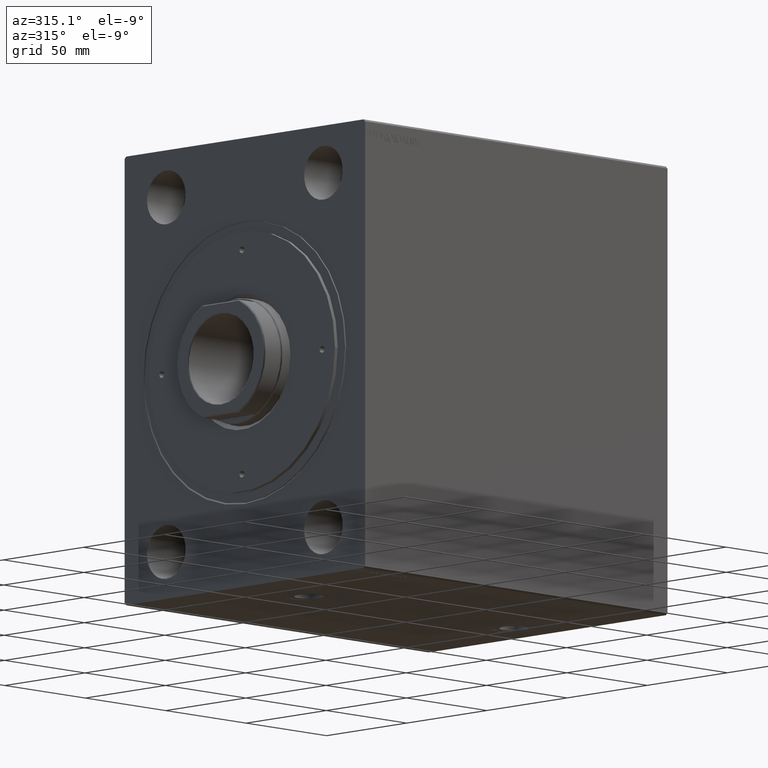
[diagram: clean part render]
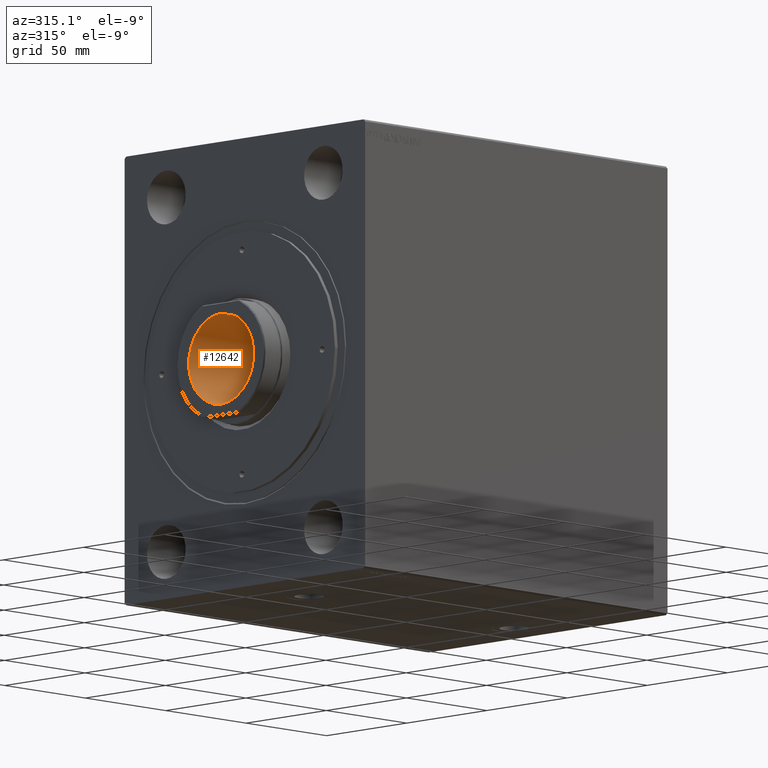
[diagram: same view with one face highlighted and labeled with its STEP entity id]
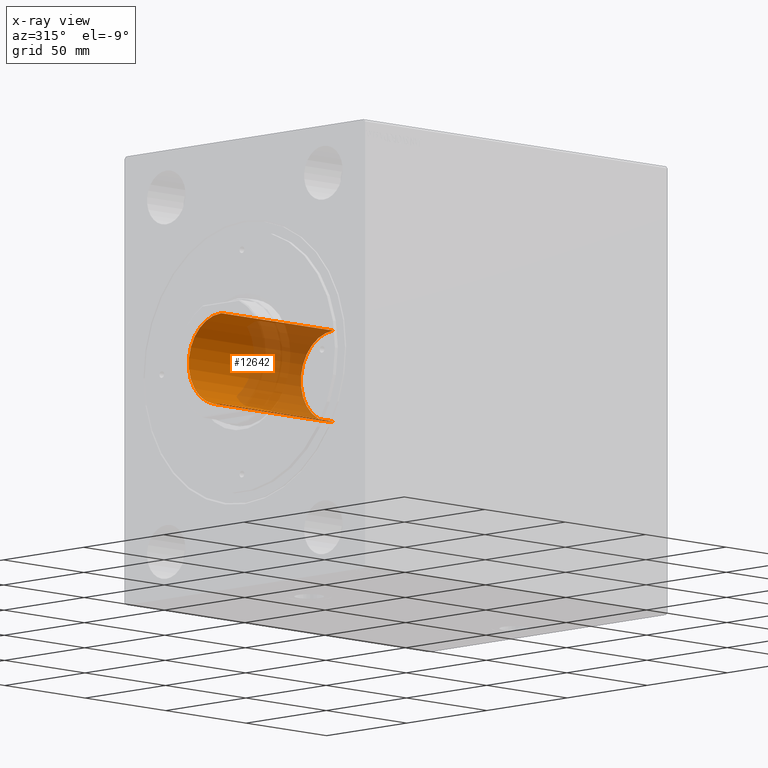
[diagram: x-ray of the same camera — body ghosted, the highlighted face saturated]
A machine part, auxiliary view. The second image highlights one B-rep face of the part: STEP entity #12642.
The next image is the same camera in x-ray: the body ghosted, the highlighted face saturated — about 52% of this face is hidden behind the body in this view.
In plain terms, the highlighted cylindrical surface (partial cylindrical patch) has radius 20.25 mm, axis along (-1, 0, 0).
Its self-contained STEP definition (entity closure, byte-faithful):
#5144 = CARTESIAN_POINT ( 'NONE',  ( 0.000000000000000000, 0.000000000000000000, 168.6999999999999602 ) ) ;
#6738 = CARTESIAN_POINT ( 'NONE',  ( -20.24999999999998934, 2.479909768273389117E-15, 169.0000000000000000 ) ) ;
#6943 = CARTESIAN_POINT ( 'NONE',  ( -20.24999999999998934, 2.479909768273389117E-15, 168.6999999999999602 ) ) ;
#7046 = DIRECTION ( 'NONE',  ( 1.000000000000000000, 0.000000000000000000, 0.000000000000000000 ) ) ;
#9273 = CARTESIAN_POINT ( 'NONE',  ( 0.000000000000000000, 0.000000000000000000, 99.00000000000000000 ) ) ;
#10296 = LINE ( 'NONE', #6738, #24971 ) ;
#10460 = CARTESIAN_POINT ( 'NONE',  ( 20.24999999999998934, 0.000000000000000000, 168.6999999999999602 ) ) ;
#10520 = DIRECTION ( 'NONE',  ( -0.000000000000000000, -0.000000000000000000, 1.000000000000000000 ) ) ;
#11419 = ORIENTED_EDGE ( 'NONE', *, *, #27105, .F. ) ;
#11818 = DIRECTION ( 'NONE',  ( 1.000000000000000000, 0.000000000000000000, 0.000000000000000000 ) ) ;
#12380 = DIRECTION ( 'NONE',  ( -0.000000000000000000, -0.000000000000000000, 1.000000000000000000 ) ) ;
#12642 = ADVANCED_FACE ( 'NONE', ( #23720 ), #16819, .F. ) ;
#12898 = AXIS2_PLACEMENT_3D ( 'NONE', #9273, #12380, #43529 ) ;
#12926 = VERTEX_POINT ( 'NONE', #6943 ) ;
#14807 = VERTEX_POINT ( 'NONE', #38024 ) ;
#15620 = ORIENTED_EDGE ( 'NONE', *, *, #28879, .T. ) ;
#16819 = CYLINDRICAL_SURFACE ( 'NONE', #21955, 20.24999999999998934 ) ;
#17256 = LINE ( 'NONE', #24169, #39167 ) ;
#18866 = VERTEX_POINT ( 'NONE', #10460 ) ;
#21955 = AXIS2_PLACEMENT_3D ( 'NONE', #27517, #23951, #7046 ) ;
#22835 = EDGE_LOOP ( 'NONE', ( #11419, #25938, #26911, #15620 ) ) ;
#23501 = DIRECTION ( 'NONE',  ( -0.000000000000000000, -0.000000000000000000, 1.000000000000000000 ) ) ;
#23720 = FACE_OUTER_BOUND ( 'NONE', #22835, .T. ) ;
#23951 = DIRECTION ( 'NONE',  ( -0.000000000000000000, -0.000000000000000000, 1.000000000000000000 ) ) ;
#24169 = CARTESIAN_POINT ( 'NONE',  ( 20.24999999999998934, 0.000000000000000000, 169.0000000000000000 ) ) ;
#24971 = VECTOR ( 'NONE', #10520, 1000.000000000000000 ) ;
#25688 = AXIS2_PLACEMENT_3D ( 'NONE', #5144, #42305, #11818 ) ;
#25938 = ORIENTED_EDGE ( 'NONE', *, *, #28535, .F. ) ;
#26911 = ORIENTED_EDGE ( 'NONE', *, *, #31788, .T. ) ;
#27105 = EDGE_CURVE ( 'NONE', #41648, #12926, #10296, .T. ) ;
#27517 = CARTESIAN_POINT ( 'NONE',  ( 0.000000000000000000, 0.000000000000000000, 169.0000000000000000 ) ) ;
#27835 = CIRCLE ( 'NONE', #12898, 20.24999999999998224 ) ;
#28535 = EDGE_CURVE ( 'NONE', #14807, #41648, #27835, .T. ) ;
#28879 = EDGE_CURVE ( 'NONE', #18866, #12926, #34938, .T. ) ;
#31788 = EDGE_CURVE ( 'NONE', #14807, #18866, #17256, .T. ) ;
#34938 = CIRCLE ( 'NONE', #25688, 20.24999999999998934 ) ;
#36001 = CARTESIAN_POINT ( 'NONE',  ( -20.24999999999998224, 2.479909768273388328E-15, 99.00000000000000000 ) ) ;
#38024 = CARTESIAN_POINT ( 'NONE',  ( 20.24999999999998224, 0.000000000000000000, 99.00000000000000000 ) ) ;
#39167 = VECTOR ( 'NONE', #23501, 1000.000000000000000 ) ;
#41648 = VERTEX_POINT ( 'NONE', #36001 ) ;
#42305 = DIRECTION ( 'NONE',  ( 0.000000000000000000, 0.000000000000000000, 1.000000000000000000 ) ) ;
#43529 = DIRECTION ( 'NONE',  ( 1.000000000000000000, 0.000000000000000000, 0.000000000000000000 ) ) ;